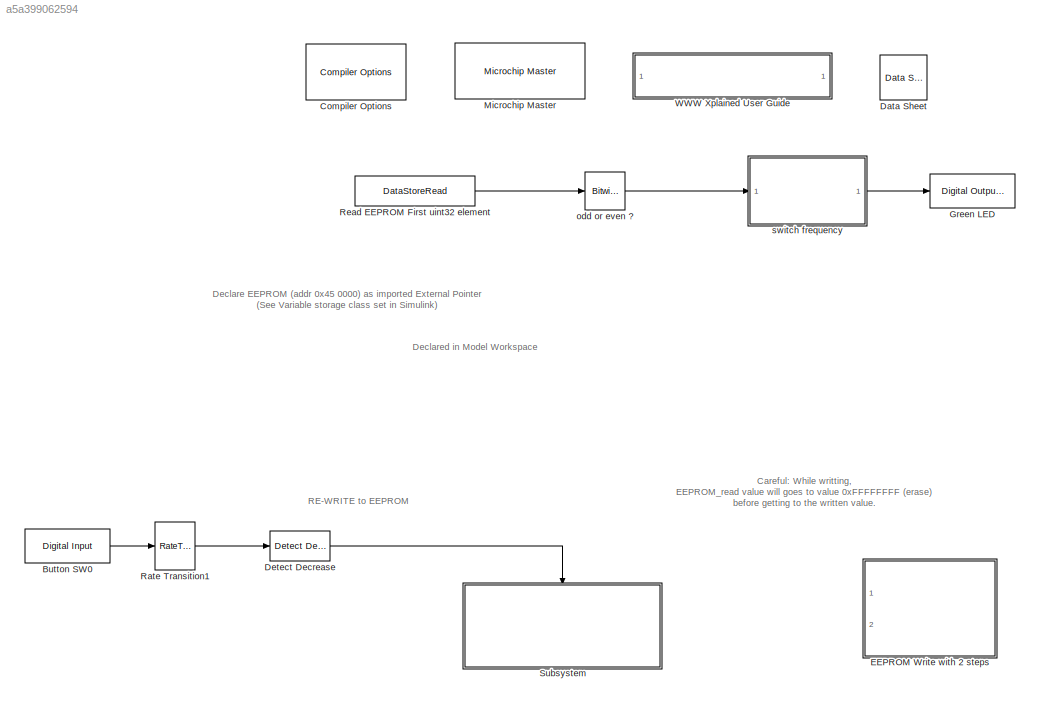
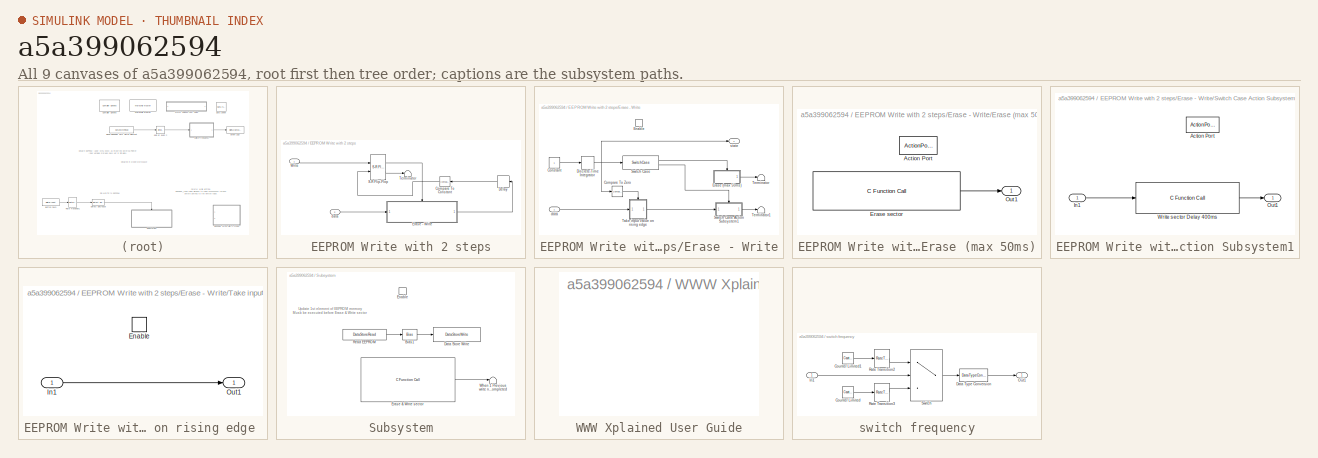
[diagram: thumbnail index - all 9 canvases of the model, root first then tree order]
MODEL slx_a5a399062594
KIND model
CONFIG AbsTol = auto
CONFIG EnableMultiTasking = on
CONFIG FixedStep = 0.001
CONFIG MaxStep = auto
CONFIG MinStep = auto
CONFIG RelTol = 1e-3
CONFIG SampleTimeConstraint = Unconstrained
CONFIG SolverName = FixedStepDiscrete
CONFIG StartTime = 0.0
CONFIG StopTime = 10.0
WORKSPACE source: mxarray member
WORKSPACE EEPROM_0x45_0000: Simulink.Signal (value not decoded)
BLOCK [Reference] Button SW0  REF=MCHP_Blockset/Digital IO/Digital Input
  Ports = [0, 1]
  SourceBlock = MCHP_Blockset/Digital IO/Digital Input
  SourceProductName = MPLAB Device Blocks for Simulink
  SourceType = Input driver for Digital Input Pins
BLOCK [Reference] Compiler Options  REF=MCHP_Blockset/System Configuration/Compiler Options
  Ports = []
  Priority = 1
  SourceBlock = MCHP_Blockset/System Configuration/Compiler Options
  SourceProductName = MPLAB Device Blocks for Simulink
BLOCK [Reference] Data Sheet  REF=MCHP_Blockset/System Info/Data Sheet
  AttributesFormatString = %<cpy_MCHP_Id>
  Ports = []
  SourceBlock = MCHP_Blockset/System Info/Data Sheet
  SourceProductName = MPLAB Device Blocks for Simulink
BLOCK [Reference] Detect Decrease  REF=simulink/Logic and Bit
Operations/Detect
Decrease
  Ports = [1, 1]
  SourceBlock = simulink/Logic and Bit\nOperations/Detect\nDecrease
  SourceProductBaseCode = SL
  SourceType = Detect Decrease
BLOCK [SubSystem] EEPROM Write with 2 steps
  Commented = on
  Ports = [2]
  RequestExecContextInheritance = off
BLOCK [Reference] EEPROM Write with 2 steps/Compare To Constant  REF=simulink/Logic and Bit
Operations/Compare
To Constant
  Ports = [1, 1]
  SourceBlock = simulink/Logic and Bit\nOperations/Compare\nTo Constant
  SourceProductBaseCode = SL
  SourceType = Compare To Constant
BLOCK [Delay] EEPROM Write with 2 steps/Delay
  DelayLength = 1
  InitialCondition = 0
  InputPortMap = u0
  Ports = [1, 1]
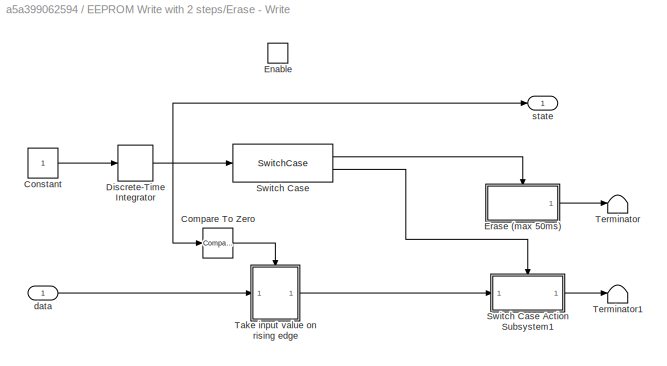
BLOCK [SubSystem] EEPROM Write with 2 steps/Erase - Write
  Ports = [1, 1, 1]
  RequestExecContextInheritance = off
BLOCK [Reference] EEPROM Write with 2 steps/Erase - Write/Compare To Zero  REF=simulink/Logic and Bit
Operations/Compare
To Zero
  Ports = [1, 1]
  SourceBlock = simulink/Logic and Bit\nOperations/Compare\nTo Zero
  SourceProductBaseCode = SL
  SourceType = Compare To Zero
BLOCK [Constant] EEPROM Write with 2 steps/Erase - Write/Constant
  SampleTime = 0.05
BLOCK [DiscreteIntegrator] EEPROM Write with 2 steps/Erase - Write/Discrete-Time Integrator
  ICPrevOutput = DiscIntNeverNeededParam
  ICPrevScaledInput = DiscIntNeverNeededParam
  InitialConditionSetting = Auto
  IntegratorMethod = Accumulation: Forward Euler
  OutDataTypeStr = uint16
  Ports = [1, 1]
  SampleTime = -1
  SaturateOnIntegerOverflow = on
  gainval = 1
BLOCK [EnablePort] EEPROM Write with 2 steps/Erase - Write/Enable
  Ports = []
  StatesWhenEnabling = reset
BLOCK [SubSystem] EEPROM Write with 2 steps/Erase - Write/Erase (max 50ms)
  Ports = [0, 1, 0, 0, 0, 0, 0, 1]
  RequestExecContextInheritance = off
  TreatAsAtomicUnit = on
BLOCK [ActionPort] EEPROM Write with 2 steps/Erase - Write/Erase (max 50ms)/Action Port
BLOCK [Reference] EEPROM Write with 2 steps/Erase - Write/Erase (max 50ms)/Erase sector  REF=MCHP_Blockset/User Functions/C Function Call
  Ports = [0, 1]
  SourceBlock = MCHP_Blockset/User Functions/C Function Call
  SourceProductName = MPLAB Device Blocks for Simulink
  SourceType = C Function Call
  UserDataPersistent = on
BLOCK [Outport] EEPROM Write with 2 steps/Erase - Write/Erase (max 50ms)/Out1
BLOCK [SwitchCase] EEPROM Write with 2 steps/Erase - Write/Switch Case
  CaseConditions = {0,1}
  Ports = [1, 2]
  ShowDefaultCase = off
BLOCK [SubSystem] EEPROM Write with 2 steps/Erase - Write/Switch Case Action Subsystem1
  Ports = [1, 1, 0, 0, 0, 0, 0, 1]
  RequestExecContextInheritance = off
  TreatAsAtomicUnit = on
BLOCK [ActionPort] EEPROM Write with 2 steps/Erase - Write/Switch Case Action Subsystem1/Action Port
BLOCK [Inport] EEPROM Write with 2 steps/Erase - Write/Switch Case Action Subsystem1/In1
BLOCK [Outport] EEPROM Write with 2 steps/Erase - Write/Switch Case Action Subsystem1/Out1
BLOCK [Reference] EEPROM Write with 2 steps/Erase - Write/Switch Case Action Subsystem1/Write sector Delay 400ms   REF=MCHP_Blockset/User Functions/C Function Call
  Ports = [1, 1]
  SourceBlock = MCHP_Blockset/User Functions/C Function Call
  SourceProductName = MPLAB Device Blocks for Simulink
  SourceType = C Function Call
  UserDataPersistent = on
BLOCK [SubSystem] EEPROM Write with 2 steps/Erase - Write/Take input value on rising edge 
  Ports = [1, 1, 1]
  RequestExecContextInheritance = off
  TreatAsAtomicUnit = on
BLOCK [EnablePort] EEPROM Write with 2 steps/Erase - Write/Take input value on rising edge /Enable
  Ports = []
BLOCK [Inport] EEPROM Write with 2 steps/Erase - Write/Take input value on rising edge /In1
BLOCK [Outport] EEPROM Write with 2 steps/Erase - Write/Take input value on rising edge /Out1
BLOCK [Terminator] EEPROM Write with 2 steps/Erase - Write/Terminator
BLOCK [Terminator] EEPROM Write with 2 steps/Erase - Write/Terminator1
BLOCK [Inport] EEPROM Write with 2 steps/Erase - Write/data
BLOCK [Outport] EEPROM Write with 2 steps/Erase - Write/state
  InitialOutput = 0
  OutputWhenDisabled = reset
BLOCK [Reference] EEPROM Write with 2 steps/S-R Flip-Flop  REF=simulink_extras/Flip Flops/S-R
Flip-Flop
  Ports = [2, 2]
  SourceBlock = simulink_extras/Flip Flops/S-R\nFlip-Flop
  SourceProductBaseCode = SL
  SourceType = SRFlipFlop
BLOCK [Terminator] EEPROM Write with 2 steps/Terminator
BLOCK [Inport] EEPROM Write with 2 steps/Write
BLOCK [Inport] EEPROM Write with 2 steps/data
  Port = 2
BLOCK [Reference] Green LED  REF=MCHP_Blockset/Digital IO/Digital Output
Write
  Ports = [1]
  SourceBlock = MCHP_Blockset/Digital IO/Digital Output\nWrite
  SourceProductName = MPLAB Device Blocks for Simulink
  SourceType = Output driver for Digital Output Pins
BLOCK [Reference] Microchip Master  REF=MCHP_Blockset/System Configuration/Microchip Master
  Ports = []
  Priority = 1
  SourceBlock = MCHP_Blockset/System Configuration/Microchip Master
  SourceProductName = MPLAB Device Blocks for Simulink
BLOCK [RateTransition] Rate Transition1
BLOCK [DataStoreRead] Read EEPROM First uint32 element
  DataStoreElements = EEPROM_0x45_0000(1)
  DataStoreName = EEPROM_0x45_0000
  Ports = [0, 1]
BLOCK [SubSystem] Subsystem
  Ports = [0, 0, 1]
  RequestExecContextInheritance = off
BLOCK [Bias] Subsystem/Bias1
  Bias = 1
  SaturateOnIntegerOverflow = off
BLOCK [DataStoreWrite] Subsystem/Data Store Write
  DataStoreElements = EEPROM_0x45_0000(1)
  DataStoreName = EEPROM_0x45_0000
  Ports = [1]
  Priority = -2000
BLOCK [EnablePort] Subsystem/Enable
  Ports = []
BLOCK [Reference] Subsystem/Erase & Write sector  REF=MCHP_Blockset/User Functions/C Function Call
  Ports = [0, 1]
  Priority = 100
  SourceBlock = MCHP_Blockset/User Functions/C Function Call
  SourceProductName = MPLAB Device Blocks for Simulink
  SourceType = C Function Call
  UserDataPersistent = on
BLOCK [DataStoreRead] Subsystem/Read EEPROM
  DataStoreElements = EEPROM_0x45_0000(1)
  DataStoreName = EEPROM_0x45_0000
  Ports = [0, 1]
BLOCK [Terminator] Subsystem/When 1 Previous write not completed 
  NameLocation = right
BLOCK [SubSystem] WWW Xplained User Guide
  OpenFcn = web('https://ww1.microchip.com/downloads/en/DeviceDoc/Atmel-44050-Cortex-M7-Microcontroller-SAM-E70-XPLD-Xplained_User-guide.pdf');
  Ports = []
  RequestExecContextInheritance = off
BLOCK [Reference] odd or even ?  REF=simulink/Logic and Bit
Operations/Bitwise
Operator
  Ports = [1, 1]
  SourceBlock = simulink/Logic and Bit\nOperations/Bitwise\nOperator
  SourceProductBaseCode = SL
  SourceType = Bitwise Operator
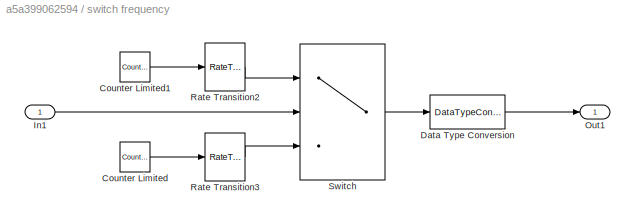
BLOCK [SubSystem] switch frequency
  Ports = [1, 1]
  RequestExecContextInheritance = off
BLOCK [Reference] switch frequency/Counter Limited  REF=simulink/Sources/Counter
Limited
  Ports = [0, 1]
  SourceBlock = simulink/Sources/Counter\nLimited
  SourceProductBaseCode = SL
  SourceType = Counter Limited
BLOCK [Reference] switch frequency/Counter Limited1  REF=simulink/Sources/Counter
Limited
  Ports = [0, 1]
  SourceBlock = simulink/Sources/Counter\nLimited
  SourceProductBaseCode = SL
  SourceType = Counter Limited
BLOCK [DataTypeConversion] switch frequency/Data Type Conversion
  OutDataTypeStr = boolean
  RndMeth = Floor
  SaturateOnIntegerOverflow = off
BLOCK [Inport] switch frequency/In1
BLOCK [Outport] switch frequency/Out1
BLOCK [RateTransition] switch frequency/Rate Transition2
BLOCK [RateTransition] switch frequency/Rate Transition3
BLOCK [Switch] switch frequency/Switch
  Criteria = u2 ~= 0
  InputSameDT = off
  SaturateOnIntegerOverflow = off
ANNOTATION (root): Careful: While writting, EEPROM_read value will goes to value 0xFFFFFFFF (erase) before getting to the written value.
ANNOTATION (root): Declare EEPROM (addr 0x45 0000) as imported External Pointer (See Variable storage class set in Simulink)
ANNOTATION (root): Declared in Model Workspace
ANNOTATION (root): RE-WRITE to EEPROM
ANNOTATION Subsystem: Update 1st element of EEPROM memory Musb be executed before Erase & Write sector
LINE Button SW0:1 -> Rate Transition1:1
LINE Detect Decrease:1 -> Subsystem:enable
LINE EEPROM Write with 2 steps/Compare To Constant:1 -> EEPROM Write with 2 steps/S-R Flip-Flop:2
LINE EEPROM Write with 2 steps/Delay:1 -> EEPROM Write with 2 steps/Compare To Constant:1
LINE EEPROM Write with 2 steps/Erase - Write/Compare To Zero:1 -> EEPROM Write with 2 steps/Erase - Write/Take input value on rising edge :enable
LINE EEPROM Write with 2 steps/Erase - Write/Constant:1 -> EEPROM Write with 2 steps/Erase - Write/Discrete-Time Integrator:1
NET EEPROM Write with 2 steps/Erase - Write/Discrete-Time Integrator:1 -> EEPROM Write with 2 steps/Erase - Write/Compare To Zero:1, EEPROM Write with 2 steps/Erase - Write/Switch Case:1, EEPROM Write with 2 steps/Erase - Write/state:1
LINE EEPROM Write with 2 steps/Erase - Write/Erase (max 50ms)/Erase sector:1 -> EEPROM Write with 2 steps/Erase - Write/Erase (max 50ms)/Out1:1
LINE EEPROM Write with 2 steps/Erase - Write/Erase (max 50ms):1 -> EEPROM Write with 2 steps/Erase - Write/Terminator:1
LINE EEPROM Write with 2 steps/Erase - Write/Switch Case Action Subsystem1/In1:1 -> EEPROM Write with 2 steps/Erase - Write/Switch Case Action Subsystem1/Write sector Delay 400ms :1
LINE EEPROM Write with 2 steps/Erase - Write/Switch Case Action Subsystem1/Write sector Delay 400ms :1 -> EEPROM Write with 2 steps/Erase - Write/Switch Case Action Subsystem1/Out1:1
LINE EEPROM Write with 2 steps/Erase - Write/Switch Case Action Subsystem1:1 -> EEPROM Write with 2 steps/Erase - Write/Terminator1:1
LINE EEPROM Write with 2 steps/Erase - Write/Switch Case:1 -> EEPROM Write with 2 steps/Erase - Write/Erase (max 50ms):ifaction
LINE EEPROM Write with 2 steps/Erase - Write/Switch Case:2 -> EEPROM Write with 2 steps/Erase - Write/Switch Case Action Subsystem1:ifaction
LINE EEPROM Write with 2 steps/Erase - Write/Take input value on rising edge /In1:1 -> EEPROM Write with 2 steps/Erase - Write/Take input value on rising edge /Out1:1
LINE EEPROM Write with 2 steps/Erase - Write/Take input value on rising edge :1 -> EEPROM Write with 2 steps/Erase - Write/Switch Case Action Subsystem1:1
LINE EEPROM Write with 2 steps/Erase - Write/data:1 -> EEPROM Write with 2 steps/Erase - Write/Take input value on rising edge :1
LINE EEPROM Write with 2 steps/Erase - Write:1 -> EEPROM Write with 2 steps/Delay:1
LINE EEPROM Write with 2 steps/S-R Flip-Flop:1 -> EEPROM Write with 2 steps/Erase - Write:enable
LINE EEPROM Write with 2 steps/S-R Flip-Flop:2 -> EEPROM Write with 2 steps/Terminator:1
LINE EEPROM Write with 2 steps/Write:1 -> EEPROM Write with 2 steps/S-R Flip-Flop:1
LINE EEPROM Write with 2 steps/data:1 -> EEPROM Write with 2 steps/Erase - Write:1
LINE Rate Transition1:1 -> Detect Decrease:1
LINE Read EEPROM First uint32 element:1 -> odd or even ?:1
LINE Subsystem/Bias1:1 -> Subsystem/Data Store Write:1
LINE Subsystem/Erase & Write sector:1 -> Subsystem/When 1 Previous write not completed :1
LINE Subsystem/Read EEPROM:1 -> Subsystem/Bias1:1
LINE odd or even ?:1 -> switch frequency:1
LINE switch frequency/Counter Limited1:1 -> switch frequency/Rate Transition2:1
LINE switch frequency/Counter Limited:1 -> switch frequency/Rate Transition3:1
LINE switch frequency/Data Type Conversion:1 -> switch frequency/Out1:1
LINE switch frequency/In1:1 -> switch frequency/Switch:2
LINE switch frequency/Rate Transition2:1 -> switch frequency/Switch:1
LINE switch frequency/Rate Transition3:1 -> switch frequency/Switch:3
LINE switch frequency/Switch:1 -> switch frequency/Data Type Conversion:1
LINE switch frequency:1 -> Green LED:1
note: NET lines group one-source signal fan-out (src -> all destinations, sorted); 1:1 wires keep LINE
